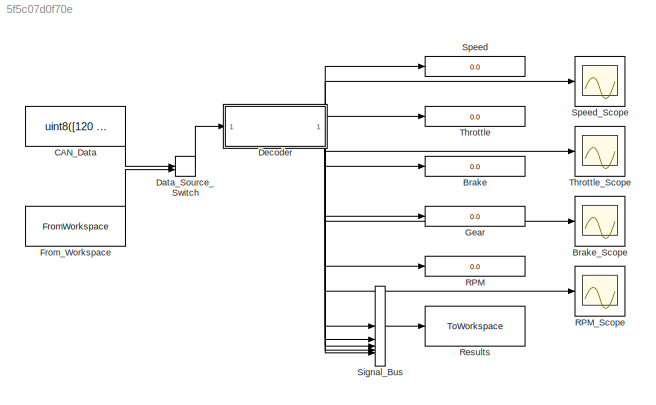
MODEL slx_5f5c07d0f70e
KIND model
CONFIG AbsTol = auto
CONFIG EnableMultiTasking = off
CONFIG FixedStep = 0.1
CONFIG MaxStep = auto
CONFIG MinStep = auto
CONFIG RelTol = 1e-3
CONFIG SampleTimeConstraint = Unconstrained
CONFIG SolverName = FixedStepAuto
CONFIG StartTime = 0.0
CONFIG StopTime = 30
BLOCK [Display] Brake
  Decimation = 1
BLOCK [Scope] Brake_Scope
  Floating = off
  GraphicalSettings = {"GraphicalSettings":{"LegacySettings":true,"Style":{"Style":{"PlotType":"Auto"}}}}
  NumInputPorts = 1
  WasSavedAsWebScope = on
BLOCK [Constant] CAN_Data
  OutDataTypeStr = uint8
  Value = uint8([120 50 25 3 43 180 0 0])
BLOCK [ManualSwitch] Data_Source_Switch
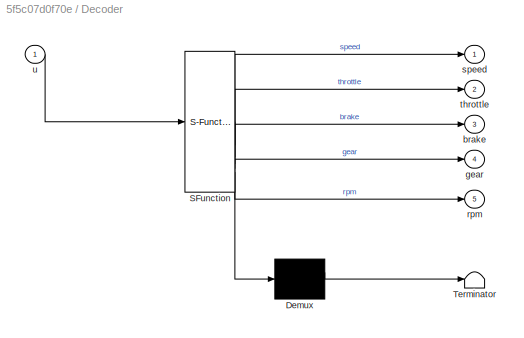
BLOCK [SubSystem] Decoder
  ErrorFcn = Stateflow.Translate.translate
  PermitHierarchicalResolution = ExplicitOnly
  SFBlockType = MATLAB Function
  TreatAsAtomicUnit = on
BLOCK [Demux] Decoder/ Demux 
  Outputs = 1
BLOCK [S-Function] Decoder/ SFunction 
  EnableBusSupport = off
  FunctionName = sf_sfun
  PortCounts = [1 6]
  SFcnIsStateOwnerBlock = off
  SFunctionDeploymentMode = off
  Tag = Stateflow S-Function 2
BLOCK [Terminator] Decoder/ Terminator 
BLOCK [Outport] Decoder/brake
  Port = 3
BLOCK [Outport] Decoder/gear
  Port = 4
BLOCK [Outport] Decoder/rpm
  Port = 5
BLOCK [Outport] Decoder/speed
BLOCK [Outport] Decoder/throttle
  Port = 2
BLOCK [Inport] Decoder/u
BLOCK [FromWorkspace] From_Workspace
  VariableName = f1_data
BLOCK [Display] Gear
  Decimation = 1
BLOCK [Display] RPM
  Decimation = 1
BLOCK [Scope] RPM_Scope
  Floating = off
  GraphicalSettings = {"GraphicalSettings":{"LegacySettings":true,"Style":{"Style":{"PlotType":"Auto"}}}}
  NumInputPorts = 1
  WasSavedAsWebScope = on
BLOCK [ToWorkspace] Results
  FixptAsFi = on
  MaxDataPoints = inf
  SampleTime = -1
  SaveFormat = Timeseries
  VariableName = telemetry_results
BLOCK [BusCreator] Signal_Bus
  DisplayOption = bar
  InheritFromInputs = on
  Inputs = 5
BLOCK [Display] Speed
  Decimation = 1
BLOCK [Scope] Speed_Scope
  Floating = off
  GraphicalSettings = {"GraphicalSettings":{"LegacySettings":true,"Style":{"Style":{"PlotType":"Auto"}}}}
  NumInputPorts = 1
  WasSavedAsWebScope = on
BLOCK [Display] Throttle
  Decimation = 1
BLOCK [Scope] Throttle_Scope
  Floating = off
  GraphicalSettings = {"GraphicalSettings":{"LegacySettings":true,"Style":{"Style":{"PlotType":"Auto"}}}}
  NumInputPorts = 1
  WasSavedAsWebScope = on
LINE CAN_Data:1 -> Data_Source_Switch:1
LINE Data_Source_Switch:1 -> Decoder:1
NET Decoder:1 -> Signal_Bus:1, Speed:1, Speed_Scope:1
NET Decoder:2 -> Signal_Bus:2, Throttle:1, Throttle_Scope:1
NET Decoder:3 -> Brake:1, Brake_Scope:1, Signal_Bus:3
NET Decoder:4 -> Gear:1, Signal_Bus:4
NET Decoder:5 -> RPM:1, RPM_Scope:1, Signal_Bus:5
LINE From_Workspace:1 -> Data_Source_Switch:2
LINE Signal_Bus:1 -> Results:1
note: NET lines group one-source signal fan-out (src -> all destinations, sorted); 1:1 wires keep LINE
CHART Decoder states=1 transitions=1
  STATE_LABEL 'eML_blk_kernel()'
  STATE_LABEL 'SCRIPT:\nfunction [speed, throttle, brake, gear, rpm] = Decoder(u)\n    speed = double(u(1));\n    throttle = double(u(2));\n    brake = double(u(3));\n    gear = double(u(4));\n    rpm = double(bitshift(u(5), 8) + u(6));\nend'
CHART  states=0 transitions=0
